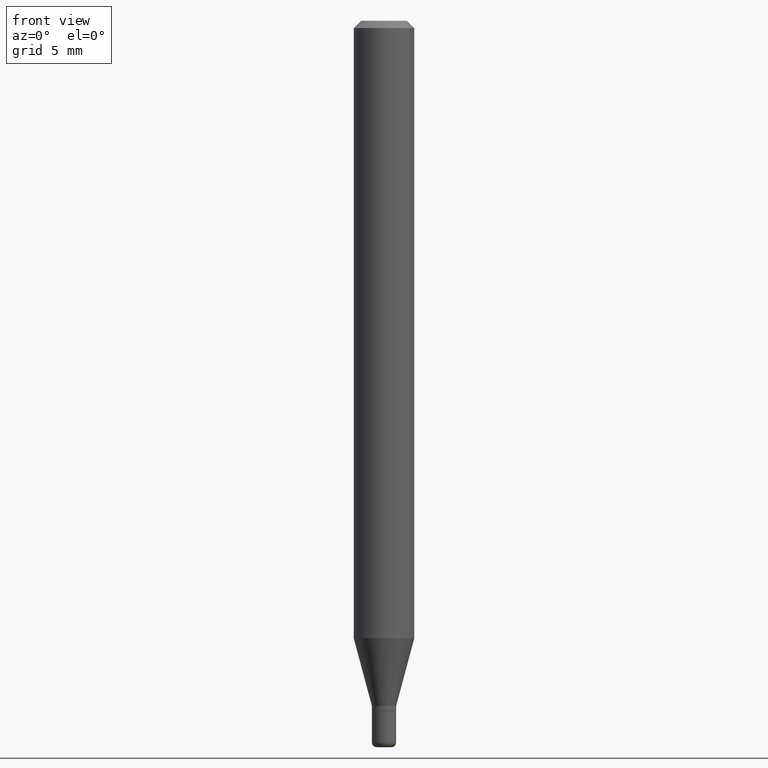
[diagram: clean part render]
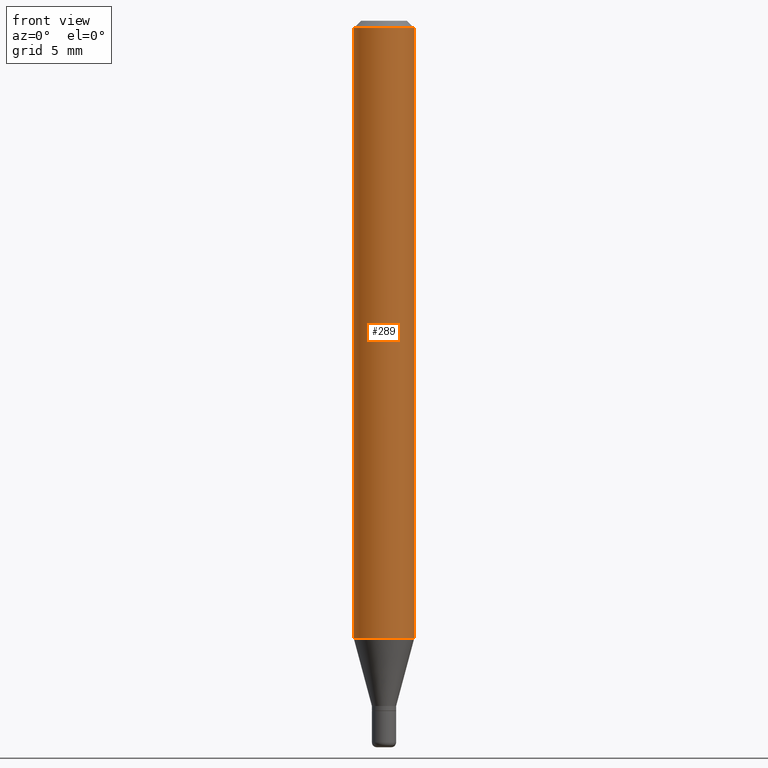
[diagram: same view with one face highlighted and labeled with its STEP entity id]
A machine part, front view. The second image highlights one B-rep face of the part: STEP entity #289.
In plain terms, the highlighted cylindrical surface (edge-blend (fillet) strip) has radius 1.5875 mm, axis along (-0, 0, 1).
Its self-contained STEP definition (entity closure, byte-faithful):
#17 = VERTEX_POINT ( 'NONE', #331 ) ;
#28 = CARTESIAN_POINT ( 'NONE',  ( -0.06250000000000000000, -4.007717418978941084E-15, -1.275048094716166869 ) ) ;
#43 = CARTESIAN_POINT ( 'NONE',  ( -0.06250000000000000000, -1.808000214605762576E-15, -0.01499999999999970281 ) ) ;
#59 = ORIENTED_EDGE ( 'NONE', *, *, #218, .T. ) ;
#60 = EDGE_CURVE ( 'NONE', #250, #358, #205, .T. ) ;
#65 = DIRECTION ( 'NONE',  ( -2.445468806185136877E-29, 3.491481338843145188E-15, 1.000000000000000000 ) ) ;
#89 = EDGE_CURVE ( 'NONE', #358, #106, #497, .T. ) ;
#91 = CARTESIAN_POINT ( 'NONE',  ( 3.668203209277632395E-31, -5.237222008264614861E-17, -0.01499999999999970281 ) ) ;
#106 = VERTEX_POINT ( 'NONE', #170 ) ;
#122 = FACE_OUTER_BOUND ( 'NONE', #510, .T. ) ;
#138 = DIRECTION ( 'NONE',  ( -2.445468806185136597E-29, 3.491481338843145583E-15, 1.000000000000000000 ) ) ;
#147 = ORIENTED_EDGE ( 'NONE', *, *, #89, .F. ) ;
#170 = CARTESIAN_POINT ( 'NONE',  ( 0.06250000000000000000, -4.888073874380378612E-16, -0.01499999999999970281 ) ) ;
#183 = AXIS2_PLACEMENT_3D ( 'NONE', #254, #138, #300 ) ;
#205 = LINE ( 'NONE', #414, #296 ) ;
#218 = EDGE_CURVE ( 'NONE', #250, #17, #431, .T. ) ;
#241 = CARTESIAN_POINT ( 'NONE',  ( 0.000000000000000000, 0.000000000000000000, 0.000000000000000000 ) ) ;
#250 = VERTEX_POINT ( 'NONE', #28 ) ;
#252 = DIRECTION ( 'NONE',  ( 1.000000000000000000, -6.982962677686266711E-15, 0.000000000000000000 ) ) ;
#254 = CARTESIAN_POINT ( 'NONE',  ( 3.118090342014177952E-29, -4.451806628829005278E-15, -1.275048094716166869 ) ) ;
#264 = ORIENTED_EDGE ( 'NONE', *, *, #60, .F. ) ;
#289 = ADVANCED_FACE ( 'NONE', ( #122 ), #443, .T. ) ;
#292 = DIRECTION ( 'NONE',  ( -2.445468806185136597E-29, 3.491481338843145583E-15, 1.000000000000000000 ) ) ;
#296 = VECTOR ( 'NONE', #451, 39.37007874015748143 ) ;
#300 = DIRECTION ( 'NONE',  ( 1.000000000000000000, -6.982962677686262766E-15, 0.000000000000000000 ) ) ;
#314 = AXIS2_PLACEMENT_3D ( 'NONE', #241, #329, #367 ) ;
#329 = DIRECTION ( 'NONE',  ( -2.445468806185136597E-29, 3.491481338843145583E-15, 1.000000000000000000 ) ) ;
#331 = CARTESIAN_POINT ( 'NONE',  ( 0.06250000000000000000, -4.888241796184395369E-15, -1.275048094716166869 ) ) ;
#333 = LINE ( 'NONE', #459, #387 ) ;
#343 = ORIENTED_EDGE ( 'NONE', *, *, #485, .T. ) ;
#358 = VERTEX_POINT ( 'NONE', #43 ) ;
#367 = DIRECTION ( 'NONE',  ( 1.000000000000000000, -6.982962677686266711E-15, 4.876176775795935793E-29 ) ) ;
#387 = VECTOR ( 'NONE', #65, 39.37007874015748143 ) ;
#414 = CARTESIAN_POINT ( 'NONE',  ( -0.06250000000000000000, 4.440892098500626162E-16, -3.074334431409316114E-30 ) ) ;
#431 = CIRCLE ( 'NONE', #183, 0.06250000000000000000 ) ;
#443 = CYLINDRICAL_SURFACE ( 'NONE', #314, 0.06250000000000000000 ) ;
#451 = DIRECTION ( 'NONE',  ( -2.445468806185136877E-29, 3.491481338843145188E-15, 1.000000000000000000 ) ) ;
#459 = CARTESIAN_POINT ( 'NONE',  ( 0.06250000000000000000, -4.364351673553916694E-16, 3.047610484872459871E-30 ) ) ;
#485 = EDGE_CURVE ( 'NONE', #17, #106, #333, .T. ) ;
#497 = CIRCLE ( 'NONE', #508, 0.06250000000000000000 ) ;
#508 = AXIS2_PLACEMENT_3D ( 'NONE', #91, #292, #252 ) ;
#510 = EDGE_LOOP ( 'NONE', ( #264, #59, #343, #147 ) ) ;